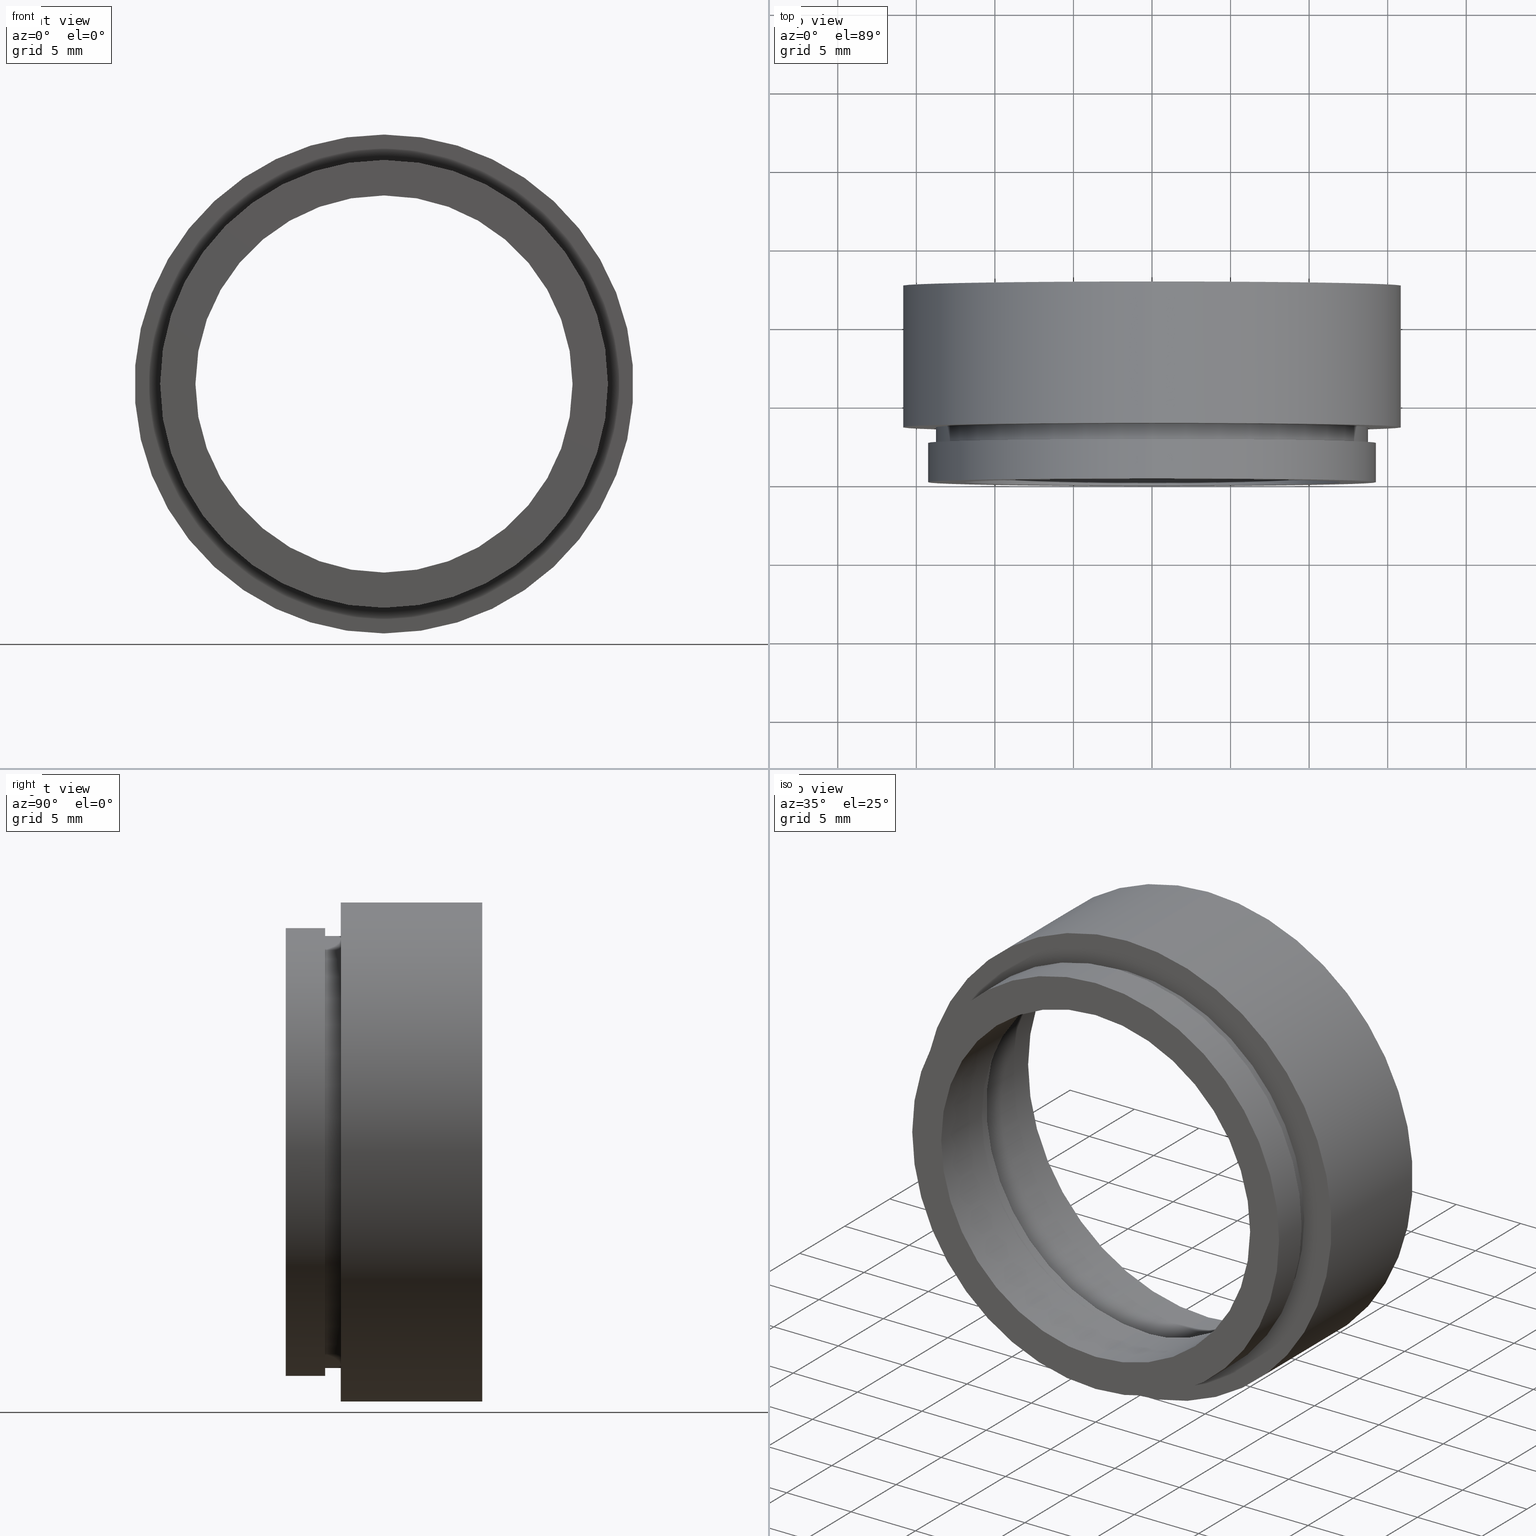
[diagram: canonical four-view strip — front | top / right | iso, engineering-drawing reading convention]
A machine part, canonical four-view strip (front | top / right | iso — engineering-drawing reading convention). The complete STEP part file that produces these views, byte-faithful:
ISO-10303-21;
HEADER;
FILE_DESCRIPTION (( 'STEP AP203' ),
    '1' );
FILE_NAME ('501004.STEP',
    '2019-08-30T10:09:04',
    ( '' ),
    ( '' ),
    'SwSTEP 2.0',
    'SolidWorks 2016',
    '' );
FILE_SCHEMA (( 'CONFIG_CONTROL_DESIGN' ));
ENDSEC;

DATA;
#1 = CALENDAR_DATE ( 2019, 30, 8 ) ;
#2 = PRODUCT_DEFINITION_SHAPE ( 'NONE', 'NONE',  #330 ) ;
#3 = AXIS2_PLACEMENT_3D ( 'NONE', #497, #222, #673 ) ;
#4 = ADVANCED_FACE ( 'NONE', ( #665 ), #285, .T. ) ;
#5 = ORIENTED_EDGE ( 'NONE', *, *, #452, .T. ) ;
#6 = ORIENTED_EDGE ( 'NONE', *, *, #292, .F. ) ;
#7 = PLANE ( 'NONE',  #153 ) ;
#8 = EDGE_CURVE ( 'NONE', #647, #14, #545, .T. ) ;
#9 = DIRECTION ( 'NONE',  ( 0.0000000000000000000, 0.0000000000000000000, -1.000000000000000000 ) ) ;
#10 = DATE_AND_TIME ( #315, #179 ) ;
#11 = CARTESIAN_POINT ( 'NONE',  ( 0.0000000000000000000, 0.0000000000000000000, 0.0000000000000000000 ) ) ;
#12 = FACE_OUTER_BOUND ( 'NONE', #566, .T. ) ;
#13 = EDGE_LOOP ( 'NONE', ( #81, #111, #554, #154 ) ) ;
#14 = VERTEX_POINT ( 'NONE', #305 ) ;
#15 = CARTESIAN_POINT ( 'NONE',  ( 0.0000000000000000000, 0.0000000000000000000, 0.0000000000000000000 ) ) ;
#16 = AXIS2_PLACEMENT_3D ( 'NONE', #453, #688, #119 ) ;
#17 = CARTESIAN_POINT ( 'NONE',  ( 12.69999999999999900, 4.500000000000000000, 0.0000000000000000000 ) ) ;
#18 = APPROVAL_PERSON_ORGANIZATION ( #569, #525, #652 ) ;
#19 = CARTESIAN_POINT ( 'NONE',  ( 0.0000000000000000000, 3.500000000000000000, 0.0000000000000000000 ) ) ;
#20 = CYLINDRICAL_SURFACE ( 'NONE', #541, 14.25000000000000000 ) ;
#21 = AXIS2_PLACEMENT_3D ( 'NONE', #38, #318, #605 ) ;
#22 = PLANE ( 'NONE',  #725 ) ;
#23 = CARTESIAN_POINT ( 'NONE',  ( 1.714505518806294600E-015, 0.0000000000000000000, 14.00000000000000000 ) ) ;
#24 = CC_DESIGN_DATE_AND_TIME_ASSIGNMENT ( #10, #476, ( #703 ) ) ;
#25 = ORIENTED_EDGE ( 'NONE', *, *, #598, .T. ) ;
#26 = CARTESIAN_POINT ( 'NONE',  ( 0.0000000000000000000, 0.0000000000000000000, -12.00000000000000000 ) ) ;
#27 = SECURITY_CLASSIFICATION ( '', '', #427 ) ;
#28 = ADVANCED_FACE ( 'NONE', ( #657, #433 ), #130, .T. ) ;
#29 = VECTOR ( 'NONE', #437, 1000.000000000000000 ) ;
#30 = EDGE_CURVE ( 'NONE', #241, #215, #482, .T. ) ;
#31 = VERTEX_POINT ( 'NONE', #633 ) ;
#32 = ORIENTED_EDGE ( 'NONE', *, *, #232, .F. ) ;
#33 = MECHANICAL_CONTEXT ( 'NONE', #419, 'mechanical' ) ;
#34 = CALENDAR_DATE ( 2019, 30, 8 ) ;
#35 = PERSON_AND_ORGANIZATION_ROLE ( 'design_owner' ) ;
#36 = CARTESIAN_POINT ( 'NONE',  ( 0.0000000000000000000, 0.0000000000000000000, -14.25000000000000000 ) ) ;
#37 = EDGE_LOOP ( 'NONE', ( #122, #455, #495, #583 ) ) ;
#38 = CARTESIAN_POINT ( 'NONE',  ( 0.0000000000000000000, 6.000000000000000000, 0.0000000000000000000 ) ) ;
#39 = AXIS2_PLACEMENT_3D ( 'NONE', #82, #194, #150 ) ;
#40 = CARTESIAN_POINT ( 'NONE',  ( 0.0000000000000000000, 0.0000000000000000000, 0.0000000000000000000 ) ) ;
#41 = EDGE_CURVE ( 'NONE', #693, #441, #333, .T. ) ;
#42 = CIRCLE ( 'NONE', #114, 13.75000000000000000 ) ;
#43 = DIRECTION ( 'NONE',  ( -0.0000000000000000000, -1.000000000000000000, -0.0000000000000000000 ) ) ;
#44 = LINE ( 'NONE', #604, #276 ) ;
#45 = EDGE_LOOP ( 'NONE', ( #603, #386 ) ) ;
#46 = CARTESIAN_POINT ( 'NONE',  ( 0.0000000000000000000, 0.0000000000000000000, -12.69999999999999900 ) ) ;
#47 = PERSON_AND_ORGANIZATION ( #712, #247 ) ;
#48 = CIRCLE ( 'NONE', #513, 14.25000000000000000 ) ;
#49 = DIRECTION ( 'NONE',  ( -0.0000000000000000000, -1.000000000000000000, -0.0000000000000000000 ) ) ;
#50 = AXIS2_PLACEMENT_3D ( 'NONE', #552, #113, #282 ) ;
#51 = CIRCLE ( 'NONE', #674, 14.35000000000000100 ) ;
#52 = CARTESIAN_POINT ( 'NONE',  ( 0.0000000000000000000, 0.0000000000000000000, 0.0000000000000000000 ) ) ;
#53 = FACE_BOUND ( 'NONE', #231, .T. ) ;
#54 = ADVANCED_FACE ( 'NONE', ( #502, #53 ), #22, .T. ) ;
#55 = EDGE_CURVE ( 'NONE', #647, #380, #160, .T. ) ;
#56 = DIRECTION ( 'NONE',  ( 0.0000000000000000000, 0.0000000000000000000, -1.000000000000000000 ) ) ;
#57 = APPROVAL ( #317, 'δָ��' ) ;
#58 = CARTESIAN_POINT ( 'NONE',  ( 1.757368156776452000E-015, 0.0000000000000000000, 14.35000000000000100 ) ) ;
#59 = CIRCLE ( 'NONE', #280, 14.00000000000000000 ) ;
#60 = DIRECTION ( 'NONE',  ( 0.0000000000000000000, 0.0000000000000000000, -1.000000000000000000 ) ) ;
#61 = AXIS2_PLACEMENT_3D ( 'NONE', #611, #49, #278 ) ;
#62 = ORIENTED_EDGE ( 'NONE', *, *, #339, .T. ) ;
#63 = ORIENTED_EDGE ( 'NONE', *, *, #304, .T. ) ;
#64 = DIRECTION ( 'NONE',  ( 0.0000000000000000000, 0.0000000000000000000, -1.000000000000000000 ) ) ;
#65 = VERTEX_POINT ( 'NONE', #302 ) ;
#66 = EDGE_CURVE ( 'NONE', #582, #708, #348, .T. ) ;
#67 = DIRECTION ( 'NONE',  ( 0.0000000000000000000, 0.0000000000000000000, -1.000000000000000000 ) ) ;
#68 = LOCAL_TIME ( 18, 9, 4.000000000000000000, #671 ) ;
#69 = DIRECTION ( 'NONE',  ( 0.0000000000000000000, 0.0000000000000000000, -1.000000000000000000 ) ) ;
#70 = CARTESIAN_POINT ( 'NONE',  ( 1.555301434917138400E-015, 6.000000000000000000, 12.69999999999999900 ) ) ;
#71 = ORIENTED_EDGE ( 'NONE', *, *, #140, .T. ) ;
#72 = DIRECTION ( 'NONE',  ( -0.0000000000000000000, -1.000000000000000000, -0.0000000000000000000 ) ) ;
#73 =( NAMED_UNIT ( * ) PLANE_ANGLE_UNIT ( ) SI_UNIT ( $, .RADIAN. ) );
#74 = DIRECTION ( 'NONE',  ( 0.0000000000000000000, 0.0000000000000000000, -1.000000000000000000 ) ) ;
#75 = CC_DESIGN_DATE_AND_TIME_ASSIGNMENT ( #691, #202, ( #330 ) ) ;
#76 = DIRECTION ( 'NONE',  ( -0.0000000000000000000, -1.000000000000000000, -0.0000000000000000000 ) ) ;
#77 = DIRECTION ( 'NONE',  ( -0.0000000000000000000, -1.000000000000000000, -0.0000000000000000000 ) ) ;
#78 = LINE ( 'NONE', #58, #190 ) ;
#79 = EDGE_CURVE ( 'NONE', #31, #719, #240, .T. ) ;
#80 = CIRCLE ( 'NONE', #164, 13.75000000000000000 ) ;
#81 = ORIENTED_EDGE ( 'NONE', *, *, #41, .F. ) ;
#82 = CARTESIAN_POINT ( 'NONE',  ( 0.0000000000000000000, 0.0000000000000000000, 0.0000000000000000000 ) ) ;
#83 = EDGE_LOOP ( 'NONE', ( #369, #532 ) ) ;
#84 = DATE_TIME_ROLE ( 'classification_date' ) ;
#85 = COORDINATED_UNIVERSAL_TIME_OFFSET ( 8, 0, .AHEAD. ) ;
#86 = APPROVAL_DATE_TIME ( #422, #616 ) ;
#87 = DATE_TIME_ROLE ( 'creation_date' ) ;
#88 = AXIS2_PLACEMENT_3D ( 'NONE', #279, #284, #112 ) ;
#89 = ORIENTED_EDGE ( 'NONE', *, *, #520, .T. ) ;
#90 = APPLICATION_CONTEXT ( 'configuration controlled 3d designs of mechanical parts and assemblies' ) ;
#91 = CARTESIAN_POINT ( 'NONE',  ( 1.745121688784978200E-015, 0.0000000000000000000, 14.25000000000000000 ) ) ;
#92 = APPLICATION_CONTEXT ( 'configuration controlled 3d designs of mechanical parts and assemblies' ) ;
#93 = ADVANCED_FACE ( 'NONE', ( #635 ), #446, .T. ) ;
#94 = EDGE_CURVE ( 'NONE', #176, #584, #463, .T. ) ;
#95 = PRODUCT_RELATED_PRODUCT_CATEGORY ( 'detail', '', ( #372 ) ) ;
#96 = PERSON_AND_ORGANIZATION ( #712, #247 ) ;
#97 = CARTESIAN_POINT ( 'NONE',  ( 0.0000000000000000000, 7.000000000000000000, 0.0000000000000000000 ) ) ;
#98 = VECTOR ( 'NONE', #184, 1000.000000000000000 ) ;
#99 = VERTEX_POINT ( 'NONE', #412 ) ;
#100 = ORIENTED_EDGE ( 'NONE', *, *, #66, .F. ) ;
#101 = AXIS2_PLACEMENT_3D ( 'NONE', #107, #727, #60 ) ;
#102 = EDGE_LOOP ( 'NONE', ( #298, #167, #563, #250 ) ) ;
#103 = CARTESIAN_POINT ( 'NONE',  ( 0.0000000000000000000, 0.0000000000000000000, 0.0000000000000000000 ) ) ;
#104 = DIRECTION ( 'NONE',  ( 0.0000000000000000000, -0.0000000000000000000, 1.000000000000000000 ) ) ;
#105 = EDGE_CURVE ( 'NONE', #216, #441, #152, .T. ) ;
#106 = CALENDAR_DATE ( 2019, 30, 8 ) ;
#107 = CARTESIAN_POINT ( 'NONE',  ( 0.0000000000000000000, 0.0000000000000000000, 0.0000000000000000000 ) ) ;
#108 = CIRCLE ( 'NONE', #399, 13.75000000000000000 ) ;
#109 = EDGE_LOOP ( 'NONE', ( #720, #253, #71, #134 ) ) ;
#110 = AXIS2_PLACEMENT_3D ( 'NONE', #607, #43, #718 ) ;
#111 = ORIENTED_EDGE ( 'NONE', *, *, #168, .F. ) ;
#112 = DIRECTION ( 'NONE',  ( 0.0000000000000000000, 0.0000000000000000000, -1.000000000000000000 ) ) ;
#113 = DIRECTION ( 'NONE',  ( -0.0000000000000000000, -1.000000000000000000, -0.0000000000000000000 ) ) ;
#114 = AXIS2_PLACEMENT_3D ( 'NONE', #619, #275, #670 ) ;
#115 = CYLINDRICAL_SURFACE ( 'NONE', #659, 14.35000000000000100 ) ;
#116 = CARTESIAN_POINT ( 'NONE',  ( 0.0000000000000000000, 3.500000000000000000, 0.0000000000000000000 ) ) ;
#117 = ORIENTED_EDGE ( 'NONE', *, *, #129, .F. ) ;
#118 = EDGE_CURVE ( 'NONE', #176, #593, #614, .T. ) ;
#119 = DIRECTION ( 'NONE',  ( 0.0000000000000000000, 0.0000000000000000000, -1.000000000000000000 ) ) ;
#120 = CARTESIAN_POINT ( 'NONE',  ( 1.555301434917138400E-015, 4.500000000000000000, 12.69999999999999900 ) ) ;
#121 = CARTESIAN_POINT ( 'NONE',  ( 0.0000000000000000000, 4.500000000000000000, 0.0000000000000000000 ) ) ;
#122 = ORIENTED_EDGE ( 'NONE', *, *, #283, .F. ) ;
#123 = CARTESIAN_POINT ( 'NONE',  ( 0.0000000000000000000, 0.0000000000000000000, 0.0000000000000000000 ) ) ;
#124 = AXIS2_PLACEMENT_3D ( 'NONE', #522, #256, #133 ) ;
#125 = DIRECTION ( 'NONE',  ( 0.0000000000000000000, 0.0000000000000000000, 1.000000000000000000 ) ) ;
#126 = DIRECTION ( 'NONE',  ( 0.0000000000000000000, 0.0000000000000000000, -1.000000000000000000 ) ) ;
#127 = CALENDAR_DATE ( 2019, 30, 8 ) ;
#128 = CARTESIAN_POINT ( 'NONE',  ( 0.0000000000000000000, 6.000000000000000000, -14.35000000000000100 ) ) ;
#129 = EDGE_CURVE ( 'NONE', #367, #562, #340, .T. ) ;
#130 = PLANE ( 'NONE',  #191 ) ;
#131 = ORIENTED_EDGE ( 'NONE', *, *, #556, .T. ) ;
#132 = CARTESIAN_POINT ( 'NONE',  ( 0.0000000000000000000, 0.0000000000000000000, -14.35000000000000100 ) ) ;
#133 = DIRECTION ( 'NONE',  ( 0.0000000000000000000, 0.0000000000000000000, -1.000000000000000000 ) ) ;
#134 = ORIENTED_EDGE ( 'NONE', *, *, #180, .F. ) ;
#135 = AXIS2_PLACEMENT_3D ( 'NONE', #15, #404, #456 ) ;
#136 = DIRECTION ( 'NONE',  ( 0.0000000000000000000, 0.0000000000000000000, -1.000000000000000000 ) ) ;
#137 = DATE_AND_TIME ( #281, #68 ) ;
#138 = APPROVAL_STATUS ( 'not_yet_approved' ) ;
#139 = CYLINDRICAL_SURFACE ( 'NONE', #243, 15.87500000000000000 ) ;
#140 = EDGE_CURVE ( 'NONE', #99, #416, #692, .T. ) ;
#141 = ORIENTED_EDGE ( 'NONE', *, *, #158, .F. ) ;
#142 = ORIENTED_EDGE ( 'NONE', *, *, #407, .F. ) ;
#143 = PERSON_AND_ORGANIZATION_ROLE ( 'classification_officer' ) ;
#144 = ADVANCED_FACE ( 'NONE', ( #12 ), #527, .F. ) ;
#145 = AXIS2_PLACEMENT_3D ( 'NONE', #524, #72, #74 ) ;
#146 = APPROVAL_PERSON_ORGANIZATION ( #165, #57, #538 ) ;
#147 = DIRECTION ( 'NONE',  ( -0.0000000000000000000, -1.000000000000000000, -0.0000000000000000000 ) ) ;
#148 = PERSON_AND_ORGANIZATION ( #712, #247 ) ;
#149 = CIRCLE ( 'NONE', #135, 14.25000000000000000 ) ;
#150 = DIRECTION ( 'NONE',  ( 1.000000000000000000, 0.0000000000000000000, 0.0000000000000000000 ) ) ;
#151 = CARTESIAN_POINT ( 'NONE',  ( 1.469576158976823900E-015, 0.0000000000000000000, 12.00000000000000000 ) ) ;
#152 = CIRCLE ( 'NONE', #177, 12.69999999999999900 ) ;
#153 = AXIS2_PLACEMENT_3D ( 'NONE', #344, #695, #346 ) ;
#154 = ORIENTED_EDGE ( 'NONE', *, *, #105, .T. ) ;
#155 = ADVANCED_FACE ( 'NONE', ( #394, #590 ), #713, .T. ) ;
#156 = EDGE_LOOP ( 'NONE', ( #100, #358 ) ) ;
#157 = CARTESIAN_POINT ( 'NONE',  ( 0.0000000000000000000, 4.500000000000000000, -12.00000000000000000 ) ) ;
#158 = EDGE_CURVE ( 'NONE', #416, #99, #700, .T. ) ;
#159 = APPROVAL_PERSON_ORGANIZATION ( #606, #255, #589 ) ;
#160 = LINE ( 'NONE', #516, #726 ) ;
#161 = DIRECTION ( 'NONE',  ( -0.0000000000000000000, -1.000000000000000000, -0.0000000000000000000 ) ) ;
#162 = ORIENTED_EDGE ( 'NONE', *, *, #304, .F. ) ;
#163 = ORIENTED_EDGE ( 'NONE', *, *, #105, .F. ) ;
#164 = AXIS2_PLACEMENT_3D ( 'NONE', #484, #724, #658 ) ;
#165 = PERSON_AND_ORGANIZATION ( #712, #247 ) ;
#166 = ADVANCED_FACE ( 'NONE', ( #544 ), #238, .F. ) ;
#167 = ORIENTED_EDGE ( 'NONE', *, *, #556, .F. ) ;
#168 = EDGE_CURVE ( 'NONE', #648, #693, #291, .T. ) ;
#169 = ADVANCED_FACE ( 'NONE', ( #675 ), #377, .F. ) ;
#170 = CC_DESIGN_APPROVAL ( #57, ( #703 ) ) ;
#171 = DATE_AND_TIME ( #1, #443 ) ;
#172 = DIRECTION ( 'NONE',  ( -0.0000000000000000000, -1.000000000000000000, -0.0000000000000000000 ) ) ;
#173 = PRODUCT_RELATED_PRODUCT_CATEGORY ( 'detail', '', ( #314 ) ) ;
#174 = FACE_OUTER_BOUND ( 'NONE', #319, .T. ) ;
#175 = CARTESIAN_POINT ( 'NONE',  ( 0.0000000000000000000, 3.500000000000000000, -15.87500000000000000 ) ) ;
#176 = VERTEX_POINT ( 'NONE', #157 ) ;
#177 = AXIS2_PLACEMENT_3D ( 'NONE', #410, #602, #373 ) ;
#178 = CARTESIAN_POINT ( 'NONE',  ( 0.0000000000000000000, 2.500000000000000000, -13.75000000000000000 ) ) ;
#179 = LOCAL_TIME ( 18, 9, 4.000000000000000000, #477 ) ;
#180 = EDGE_CURVE ( 'NONE', #719, #416, #664, .T. ) ;
#181 = DIRECTION ( 'NONE',  ( -0.0000000000000000000, -1.000000000000000000, -0.0000000000000000000 ) ) ;
#182 = DIRECTION ( 'NONE',  ( -0.0000000000000000000, -1.000000000000000000, -0.0000000000000000000 ) ) ;
#183 = LINE ( 'NONE', #46, #661 ) ;
#184 = DIRECTION ( 'NONE',  ( -0.0000000000000000000, -1.000000000000000000, -0.0000000000000000000 ) ) ;
#185 = ORIENTED_EDGE ( 'NONE', *, *, #8, .F. ) ;
#186 = CARTESIAN_POINT ( 'NONE',  ( 1.469576158976823900E-015, 4.500000000000000000, 12.00000000000000000 ) ) ;
#187 = AXIS2_PLACEMENT_3D ( 'NONE', #646, #182, #576 ) ;
#188 = DIRECTION ( 'NONE',  ( 0.0000000000000000000, 0.0000000000000000000, -1.000000000000000000 ) ) ;
#189 = CARTESIAN_POINT ( 'NONE',  ( 0.0000000000000000000, 12.50000000000000000, -14.00000000000000000 ) ) ;
#190 = VECTOR ( 'NONE', #172, 1000.000000000000000 ) ;
#191 = AXIS2_PLACEMENT_3D ( 'NONE', #644, #529, #581 ) ;
#192 = CARTESIAN_POINT ( 'NONE',  ( 1.555301434917138400E-015, 0.0000000000000000000, 12.69999999999999900 ) ) ;
#193 = CIRCLE ( 'NONE', #88, 12.69999999999999900 ) ;
#194 = DIRECTION ( 'NONE',  ( 0.0000000000000000000, 0.0000000000000000000, 1.000000000000000000 ) ) ;
#195 = CYLINDRICAL_SURFACE ( 'NONE', #326, 14.00000000000000000 ) ;
#196 = PERSON_AND_ORGANIZATION_ROLE ( 'creator' ) ;
#197 = ADVANCED_FACE ( 'NONE', ( #249 ), #267, .F. ) ;
#198 = ORIENTED_EDGE ( 'NONE', *, *, #368, .T. ) ;
#199 = CC_DESIGN_PERSON_AND_ORGANIZATION_ASSIGNMENT ( #420, #312, ( #559 ) ) ;
#200 = APPROVAL_ROLE ( '' ) ;
#201 = COORDINATED_UNIVERSAL_TIME_OFFSET ( 8, 0, .AHEAD. ) ;
#202 = DATE_TIME_ROLE ( 'creation_date' ) ;
#203 = SHAPE_DEFINITION_REPRESENTATION ( #411, #486 ) ;
#204 = FACE_OUTER_BOUND ( 'NONE', #694, .T. ) ;
#205 = APPROVAL ( #138, 'δָ��' ) ;
#206 = ADVANCED_FACE ( 'NONE', ( #230 ), #195, .F. ) ;
#207 = VERTEX_POINT ( 'NONE', #432 ) ;
#208 = CARTESIAN_POINT ( 'NONE',  ( 0.0000000000000000000, 0.0000000000000000000, 0.0000000000000000000 ) ) ;
#209 = ORIENTED_EDGE ( 'NONE', *, *, #79, .T. ) ;
#210 = EDGE_CURVE ( 'NONE', #14, #647, #80, .T. ) ;
#211 = VECTOR ( 'NONE', #335, 1000.000000000000000 ) ;
#212 = CARTESIAN_POINT ( 'NONE',  ( 0.0000000000000000000, 7.000000000000000000, 0.0000000000000000000 ) ) ;
#213 = CC_DESIGN_PERSON_AND_ORGANIZATION_ASSIGNMENT ( #297, #35, ( #372 ) ) ;
#214 = ORIENTED_EDGE ( 'NONE', *, *, #392, .T. ) ;
#215 = VERTEX_POINT ( 'NONE', #36 ) ;
#216 = VERTEX_POINT ( 'NONE', #669 ) ;
#217 = DIRECTION ( 'NONE',  ( 0.0000000000000000000, 0.0000000000000000000, -1.000000000000000000 ) ) ;
#218 = CARTESIAN_POINT ( 'NONE',  ( 0.0000000000000000000, 2.500000000000000000, 0.0000000000000000000 ) ) ;
#219 = AXIS2_PLACEMENT_3D ( 'NONE', #97, #434, #217 ) ;
#220 = DATE_AND_TIME ( #127, #640 ) ;
#221 = CIRCLE ( 'NONE', #579, 15.87500000000000000 ) ;
#222 = DIRECTION ( 'NONE',  ( -0.0000000000000000000, -1.000000000000000000, -0.0000000000000000000 ) ) ;
#223 = AXIS2_PLACEMENT_3D ( 'NONE', #696, #76, #356 ) ;
#224 = VECTOR ( 'NONE', #254, 1000.000000000000000 ) ;
#225 = VERTEX_POINT ( 'NONE', #428 ) ;
#226 = DIRECTION ( 'NONE',  ( 0.0000000000000000000, 0.0000000000000000000, -1.000000000000000000 ) ) ;
#227 = AXIS2_PLACEMENT_3D ( 'NONE', #244, #526, #470 ) ;
#228 = COORDINATED_UNIVERSAL_TIME_OFFSET ( 8, 0, .AHEAD. ) ;
#229 = DIRECTION ( 'NONE',  ( -0.0000000000000000000, -1.000000000000000000, -0.0000000000000000000 ) ) ;
#230 = FACE_OUTER_BOUND ( 'NONE', #102, .T. ) ;
#231 = EDGE_LOOP ( 'NONE', ( #141, #277 ) ) ;
#232 = EDGE_CURVE ( 'NONE', #617, #215, #44, .T. ) ;
#233 = ORIENTED_EDGE ( 'NONE', *, *, #246, .T. ) ;
#234 = DESIGN_CONTEXT ( 'detailed design', #472, 'design' ) ;
#235 = PERSON_AND_ORGANIZATION ( #712, #247 ) ;
#236 = DIRECTION ( 'NONE',  ( -0.0000000000000000000, -1.000000000000000000, -0.0000000000000000000 ) ) ;
#237 = CIRCLE ( 'NONE', #360, 14.35000000000000100 ) ;
#238 = CYLINDRICAL_SURFACE ( 'NONE', #594, 14.00000000000000000 ) ;
#239 = CARTESIAN_POINT ( 'NONE',  ( 15.87500000000000000, 12.50000000000000000, 0.0000000000000000000 ) ) ;
#240 = CIRCLE ( 'NONE', #543, 14.00000000000000000 ) ;
#241 = VERTEX_POINT ( 'NONE', #91 ) ;
#242 = DIRECTION ( 'NONE',  ( 0.0000000000000000000, 0.0000000000000000000, -1.000000000000000000 ) ) ;
#243 = AXIS2_PLACEMENT_3D ( 'NONE', #393, #567, #69 ) ;
#244 = CARTESIAN_POINT ( 'NONE',  ( 0.0000000000000000000, 0.0000000000000000000, 0.0000000000000000000 ) ) ;
#245 = DIRECTION ( 'NONE',  ( 1.000000000000000000, 0.0000000000000000000, 0.0000000000000000000 ) ) ;
#246 = EDGE_CURVE ( 'NONE', #380, #494, #108, .T. ) ;
#247 = ORGANIZATION ( 'δָ��', 'δָ��', '' ) ;
#248 = DIRECTION ( 'NONE',  ( -0.0000000000000000000, -1.000000000000000000, -0.0000000000000000000 ) ) ;
#249 = FACE_OUTER_BOUND ( 'NONE', #539, .T. ) ;
#250 = ORIENTED_EDGE ( 'NONE', *, *, #158, .T. ) ;
#251 = PLANE ( 'NONE',  #449 ) ;
#252 = EDGE_LOOP ( 'NONE', ( #667, #6 ) ) ;
#253 = ORIENTED_EDGE ( 'NONE', *, *, #620, .T. ) ;
#254 = DIRECTION ( 'NONE',  ( -0.0000000000000000000, -1.000000000000000000, -0.0000000000000000000 ) ) ;
#255 = APPROVAL ( #370, 'δָ��' ) ;
#256 = DIRECTION ( 'NONE',  ( -0.0000000000000000000, -1.000000000000000000, -0.0000000000000000000 ) ) ;
#257 = PERSON_AND_ORGANIZATION_ROLE ( 'creator' ) ;
#258 = PERSON_AND_ORGANIZATION ( #712, #247 ) ;
#259 = APPLICATION_PROTOCOL_DEFINITION ( 'international standard', 'config_control_design', 1994, #92 ) ;
#260 = ORIENTED_EDGE ( 'NONE', *, *, #321, .T. ) ;
#261 = AXIS2_PLACEMENT_3D ( 'NONE', #212, #147, #666 ) ;
#262 = APPLICATION_PROTOCOL_DEFINITION ( 'international standard', 'config_control_design', 1994, #90 ) ;
#263 = DIRECTION ( 'NONE',  ( 0.0000000000000000000, 0.0000000000000000000, -1.000000000000000000 ) ) ;
#264 = APPROVAL_STATUS ( 'not_yet_approved' ) ;
#265 = CYLINDRICAL_SURFACE ( 'NONE', #388, 13.75000000000000000 ) ;
#266 = CC_DESIGN_APPROVAL ( #205, ( #710 ) ) ;
#267 = CYLINDRICAL_SURFACE ( 'NONE', #684, 12.00000000000000000 ) ;
#268 = EDGE_LOOP ( 'NONE', ( #142, #702 ) ) ;
#269 = CARTESIAN_POINT ( 'NONE',  ( 0.0000000000000000000, 0.0000000000000000000, -14.00000000000000000 ) ) ;
#270 = EDGE_LOOP ( 'NONE', ( #709, #424, #519, #378 ) ) ;
#271 = EDGE_CURVE ( 'NONE', #584, #207, #327, .T. ) ;
#272 = ADVANCED_FACE ( 'NONE', ( #682, #626 ), #681, .T. ) ;
#273 = PERSON_AND_ORGANIZATION ( #712, #247 ) ;
#274 = CIRCLE ( 'NONE', #124, 12.69999999999999900 ) ;
#275 = DIRECTION ( 'NONE',  ( -0.0000000000000000000, -1.000000000000000000, -0.0000000000000000000 ) ) ;
#276 = VECTOR ( 'NONE', #721, 1000.000000000000000 ) ;
#277 = ORIENTED_EDGE ( 'NONE', *, *, #140, .F. ) ;
#278 = DIRECTION ( 'NONE',  ( 0.0000000000000000000, 0.0000000000000000000, -1.000000000000000000 ) ) ;
#279 = CARTESIAN_POINT ( 'NONE',  ( 0.0000000000000000000, 6.000000000000000000, 0.0000000000000000000 ) ) ;
#280 = AXIS2_PLACEMENT_3D ( 'NONE', #415, #468, #136 ) ;
#281 = CALENDAR_DATE ( 2019, 30, 8 ) ;
#282 = DIRECTION ( 'NONE',  ( 0.0000000000000000000, 0.0000000000000000000, -1.000000000000000000 ) ) ;
#283 = EDGE_CURVE ( 'NONE', #610, #241, #402, .T. ) ;
#284 = DIRECTION ( 'NONE',  ( -0.0000000000000000000, -1.000000000000000000, -0.0000000000000000000 ) ) ;
#285 = CYLINDRICAL_SURFACE ( 'NONE', #663, 15.87500000000000000 ) ;
#286 = ORIENTED_EDGE ( 'NONE', *, *, #568, .T. ) ;
#287 = EDGE_LOOP ( 'NONE', ( #530, #342, #286, #686 ) ) ;
#288 = DIRECTION ( 'NONE',  ( 0.0000000000000000000, 0.0000000000000000000, -1.000000000000000000 ) ) ;
#289 = AXIS2_PLACEMENT_3D ( 'NONE', #40, #490, #263 ) ;
#290 = CIRCLE ( 'NONE', #16, 14.35000000000000100 ) ;
#291 = CIRCLE ( 'NONE', #21, 12.69999999999999900 ) ;
#292 = EDGE_CURVE ( 'NONE', #207, #593, #699, .T. ) ;
#293 = ORIENTED_EDGE ( 'NONE', *, *, #435, .T. ) ;
#294 = ORIENTED_EDGE ( 'NONE', *, *, #118, .F. ) ;
#295 = DIRECTION ( 'NONE',  ( -0.0000000000000000000, -1.000000000000000000, -0.0000000000000000000 ) ) ;
#296 = CARTESIAN_POINT ( 'NONE',  ( 1.944126793646423200E-015, 0.0000000000000000000, 15.87500000000000000 ) ) ;
#297 = PERSON_AND_ORGANIZATION ( #712, #247 ) ;
#298 = ORIENTED_EDGE ( 'NONE', *, *, #620, .F. ) ;
#299 = ORIENTED_EDGE ( 'NONE', *, *, #506, .T. ) ;
#300 = CC_DESIGN_PERSON_AND_ORGANIZATION_ASSIGNMENT ( #235, #196, ( #710 ) ) ;
#301 = DIRECTION ( 'NONE',  ( 0.0000000000000000000, 0.0000000000000000000, -1.000000000000000000 ) ) ;
#302 = CARTESIAN_POINT ( 'NONE',  ( 1.757368156776452000E-015, 6.000000000000000000, 14.35000000000000100 ) ) ;
#303 =( NAMED_UNIT ( * ) SI_UNIT ( $, .STERADIAN. ) SOLID_ANGLE_UNIT ( ) );
#304 = EDGE_CURVE ( 'NONE', #562, #65, #237, .T. ) ;
#305 = CARTESIAN_POINT ( 'NONE',  ( 0.0000000000000000000, 3.500000000000000000, -13.75000000000000000 ) ) ;
#306 = DATE_AND_TIME ( #383, #595 ) ;
#307 = VECTOR ( 'NONE', #343, 1000.000000000000000 ) ;
#308 = VECTOR ( 'NONE', #181, 1000.000000000000000 ) ;
#309 = APPROVAL_STATUS ( 'not_yet_approved' ) ;
#310 = EDGE_LOOP ( 'NONE', ( #163, #405 ) ) ;
#311 = EDGE_LOOP ( 'NONE', ( #483, #511, #601, #63 ) ) ;
#312 = PERSON_AND_ORGANIZATION_ROLE ( 'creator' ) ;
#313 = PERSON_AND_ORGANIZATION_ROLE ( 'design_owner' ) ;
#314 = PRODUCT ( '501004', '501004', '', ( #33 ) ) ;
#315 = CALENDAR_DATE ( 2019, 30, 8 ) ;
#316 = FACE_OUTER_BOUND ( 'NONE', #156, .T. ) ;
#317 = APPROVAL_STATUS ( 'not_yet_approved' ) ;
#318 = DIRECTION ( 'NONE',  ( -0.0000000000000000000, -1.000000000000000000, -0.0000000000000000000 ) ) ;
#319 = EDGE_LOOP ( 'NONE', ( #350, #618, #5, #687 ) ) ;
#320 = CARTESIAN_POINT ( 'NONE',  ( 14.35000000000000100, 6.000000000000000000, 0.0000000000000000000 ) ) ;
#321 = EDGE_CURVE ( 'NONE', #494, #380, #42, .T. ) ;
#322 = DIRECTION ( 'NONE',  ( 0.0000000000000000000, 0.0000000000000000000, -1.000000000000000000 ) ) ;
#323 = COORDINATED_UNIVERSAL_TIME_OFFSET ( 8, 0, .AHEAD. ) ;
#324 = CIRCLE ( 'NONE', #429, 12.00000000000000000 ) ;
#325 = CARTESIAN_POINT ( 'NONE',  ( 0.0000000000000000000, 0.0000000000000000000, 0.0000000000000000000 ) ) ;
#326 = AXIS2_PLACEMENT_3D ( 'NONE', #103, #540, #549 ) ;
#327 = LINE ( 'NONE', #151, #29 ) ;
#328 = ORIENTED_EDGE ( 'NONE', *, *, #481, .F. ) ;
#329 = EDGE_LOOP ( 'NONE', ( #131, #209 ) ) ;
#330 = PRODUCT_DEFINITION ( 'δ֪', '', #710, #234 ) ;
#331 = DIRECTION ( 'NONE',  ( 0.0000000000000000000, 0.0000000000000000000, -1.000000000000000000 ) ) ;
#332 = DATE_AND_TIME ( #478, #499 ) ;
#333 = LINE ( 'NONE', #192, #224 ) ;
#334 = DIRECTION ( 'NONE',  ( 0.0000000000000000000, 0.0000000000000000000, -1.000000000000000000 ) ) ;
#335 = DIRECTION ( 'NONE',  ( -0.0000000000000000000, -1.000000000000000000, -0.0000000000000000000 ) ) ;
#336 = CC_DESIGN_PERSON_AND_ORGANIZATION_ASSIGNMENT ( #47, #143, ( #27 ) ) ;
#337 = CIRCLE ( 'NONE', #61, 14.35000000000000100 ) ;
#338 = CIRCLE ( 'NONE', #553, 12.00000000000000000 ) ;
#339 = EDGE_CURVE ( 'NONE', #693, #648, #193, .T. ) ;
#340 = LINE ( 'NONE', #132, #98 ) ;
#341 = DIRECTION ( 'NONE',  ( -0.0000000000000000000, -1.000000000000000000, -0.0000000000000000000 ) ) ;
#342 = ORIENTED_EDGE ( 'NONE', *, *, #8, .T. ) ;
#343 = DIRECTION ( 'NONE',  ( -0.0000000000000000000, -1.000000000000000000, -0.0000000000000000000 ) ) ;
#344 = CARTESIAN_POINT ( 'NONE',  ( 12.00000000000000000, 0.0000000000000000000, 0.0000000000000000000 ) ) ;
#345 = APPROVAL_DATE_TIME ( #137, #255 ) ;
#346 = DIRECTION ( 'NONE',  ( 0.0000000000000000000, 0.0000000000000000000, -1.000000000000000000 ) ) ;
#347 = DIRECTION ( 'NONE',  ( -0.0000000000000000000, -1.000000000000000000, -0.0000000000000000000 ) ) ;
#348 = CIRCLE ( 'NONE', #145, 15.87500000000000000 ) ;
#349 =( GEOMETRIC_REPRESENTATION_CONTEXT ( 3 ) GLOBAL_UNCERTAINTY_ASSIGNED_CONTEXT ( ( #643 ) ) GLOBAL_UNIT_ASSIGNED_CONTEXT ( ( #409, #73, #303 ) ) REPRESENTATION_CONTEXT ( 'NONE', 'WORKASPACE' ) );
#350 = ORIENTED_EDGE ( 'NONE', *, *, #585, .F. ) ;
#351 = CARTESIAN_POINT ( 'NONE',  ( 0.0000000000000000000, 2.499999999999999600, -14.25000000000000000 ) ) ;
#352 = DIRECTION ( 'NONE',  ( -0.0000000000000000000, -1.000000000000000000, -0.0000000000000000000 ) ) ;
#353 = CARTESIAN_POINT ( 'NONE',  ( 0.0000000000000000000, 0.0000000000000000000, 0.0000000000000000000 ) ) ;
#354 = DIRECTION ( 'NONE',  ( 0.0000000000000000000, -0.0000000000000000000, 1.000000000000000000 ) ) ;
#355 = VECTOR ( 'NONE', #248, 1000.000000000000000 ) ;
#356 = DIRECTION ( 'NONE',  ( 0.0000000000000000000, 0.0000000000000000000, -1.000000000000000000 ) ) ;
#357 = CARTESIAN_POINT ( 'NONE',  ( 0.0000000000000000000, 0.0000000000000000000, 0.0000000000000000000 ) ) ;
#358 = ORIENTED_EDGE ( 'NONE', *, *, #608, .F. ) ;
#359 = ORIENTED_EDGE ( 'NONE', *, *, #339, .F. ) ;
#360 = AXIS2_PLACEMENT_3D ( 'NONE', #445, #161, #334 ) ;
#361 = EDGE_LOOP ( 'NONE', ( #260, #233 ) ) ;
#362 = AXIS2_PLACEMENT_3D ( 'NONE', #389, #496, #56 ) ;
#363 = APPROVAL_DATE_TIME ( #332, #205 ) ;
#364 = APPLICATION_PROTOCOL_DEFINITION ( 'international standard', 'config_control_design', 1994, #472 ) ;
#365 = APPROVAL_PERSON_ORGANIZATION ( #514, #205, #200 ) ;
#366 = PERSON_AND_ORGANIZATION_ROLE ( 'creator' ) ;
#367 = VERTEX_POINT ( 'NONE', #677 ) ;
#368 = EDGE_CURVE ( 'NONE', #593, #207, #338, .T. ) ;
#369 = ORIENTED_EDGE ( 'NONE', *, *, #492, .T. ) ;
#370 = APPROVAL_STATUS ( 'not_yet_approved' ) ;
#371 = DIRECTION ( 'NONE',  ( 0.0000000000000000000, 0.0000000000000000000, -1.000000000000000000 ) ) ;
#372 = PRODUCT ( '501004', '501004', '', ( #535 ) ) ;
#373 = DIRECTION ( 'NONE',  ( 0.0000000000000000000, 0.0000000000000000000, -1.000000000000000000 ) ) ;
#374 = ADVANCED_FACE ( 'NONE', ( #423 ), #265, .T. ) ;
#375 = CALENDAR_DATE ( 2019, 30, 8 ) ;
#376 = CC_DESIGN_DATE_AND_TIME_ASSIGNMENT ( #690, #84, ( #27 ) ) ;
#377 = CYLINDRICAL_SURFACE ( 'NONE', #289, 12.00000000000000000 ) ;
#378 = ORIENTED_EDGE ( 'NONE', *, *, #452, .F. ) ;
#379 = EDGE_LOOP ( 'NONE', ( #299, #440 ) ) ;
#380 = VERTEX_POINT ( 'NONE', #615 ) ;
#381 = EDGE_CURVE ( 'NONE', #436, #473, #625, .T. ) ;
#382 = DIRECTION ( 'NONE',  ( -0.0000000000000000000, -1.000000000000000000, -0.0000000000000000000 ) ) ;
#383 = CALENDAR_DATE ( 2019, 30, 8 ) ;
#384 = FACE_OUTER_BOUND ( 'NONE', #379, .T. ) ;
#385 = DIRECTION ( 'NONE',  ( -0.0000000000000000000, -1.000000000000000000, -0.0000000000000000000 ) ) ;
#386 = ORIENTED_EDGE ( 'NONE', *, *, #444, .T. ) ;
#387 = CARTESIAN_POINT ( 'NONE',  ( 0.0000000000000000000, 0.0000000000000000000, 0.0000000000000000000 ) ) ;
#388 = AXIS2_PLACEMENT_3D ( 'NONE', #52, #385, #439 ) ;
#389 = CARTESIAN_POINT ( 'NONE',  ( 0.0000000000000000000, 3.500000000000000000, 0.0000000000000000000 ) ) ;
#390 = FACE_OUTER_BOUND ( 'NONE', #310, .T. ) ;
#391 = CIRCLE ( 'NONE', #3, 14.25000000000000000 ) ;
#392 = EDGE_CURVE ( 'NONE', #65, #562, #337, .T. ) ;
#393 = CARTESIAN_POINT ( 'NONE',  ( 0.0000000000000000000, 0.0000000000000000000, 0.0000000000000000000 ) ) ;
#394 = FACE_BOUND ( 'NONE', #414, .T. ) ;
#395 = ORIENTED_EDGE ( 'NONE', *, *, #381, .T. ) ;
#396 = EDGE_LOOP ( 'NONE', ( #509, #474, #636, #198 ) ) ;
#397 = ORIENTED_EDGE ( 'NONE', *, *, #568, .F. ) ;
#398 = PLANE ( 'NONE',  #442 ) ;
#399 = AXIS2_PLACEMENT_3D ( 'NONE', #218, #504, #331 ) ;
#400 = DIRECTION ( 'NONE',  ( -0.0000000000000000000, -1.000000000000000000, -0.0000000000000000000 ) ) ;
#401 = LINE ( 'NONE', #23, #355 ) ;
#402 = LINE ( 'NONE', #501, #211 ) ;
#403 = CC_DESIGN_APPROVAL ( #616, ( #330 ) ) ;
#404 = DIRECTION ( 'NONE',  ( -0.0000000000000000000, -1.000000000000000000, -0.0000000000000000000 ) ) ;
#405 = ORIENTED_EDGE ( 'NONE', *, *, #598, .F. ) ;
#406 = ORIENTED_EDGE ( 'NONE', *, *, #271, .T. ) ;
#407 = EDGE_CURVE ( 'NONE', #617, #610, #391, .T. ) ;
#408 = DIRECTION ( 'NONE',  ( 0.0000000000000000000, 0.0000000000000000000, -1.000000000000000000 ) ) ;
#409 =( LENGTH_UNIT ( ) NAMED_UNIT ( * ) SI_UNIT ( .MILLI., .METRE. ) );
#410 = CARTESIAN_POINT ( 'NONE',  ( 0.0000000000000000000, 4.500000000000000000, 0.0000000000000000000 ) ) ;
#411 = PRODUCT_DEFINITION_SHAPE ( 'NONE', 'NONE',  #413 ) ;
#412 = CARTESIAN_POINT ( 'NONE',  ( 1.714505518806294600E-015, 7.000000000000000000, 14.00000000000000000 ) ) ;
#413 = PRODUCT_DEFINITION ( 'δ֪', '', #559, #651 ) ;
#414 = EDGE_LOOP ( 'NONE', ( #591, #62 ) ) ;
#415 = CARTESIAN_POINT ( 'NONE',  ( 0.0000000000000000000, 12.50000000000000000, 0.0000000000000000000 ) ) ;
#416 = VERTEX_POINT ( 'NONE', #557 ) ;
#417 = CARTESIAN_POINT ( 'NONE',  ( 1.745121688784978200E-015, 2.499999999999999600, 14.25000000000000000 ) ) ;
#418 = EDGE_CURVE ( 'NONE', #648, #216, #183, .T. ) ;
#419 = APPLICATION_CONTEXT ( 'configuration controlled 3d designs of mechanical parts and assemblies' ) ;
#420 = PERSON_AND_ORGANIZATION ( #712, #247 ) ;
#421 = ADVANCED_FACE ( 'NONE', ( #204 ), #588, .F. ) ;
#422 = DATE_AND_TIME ( #375, #523 ) ;
#423 = FACE_OUTER_BOUND ( 'NONE', #287, .T. ) ;
#424 = ORIENTED_EDGE ( 'NONE', *, *, #585, .T. ) ;
#425 = PERSON_AND_ORGANIZATION_ROLE ( 'design_supplier' ) ;
#426 = ADVANCED_FACE ( 'NONE', ( #451 ), #115, .F. ) ;
#427 = SECURITY_CLASSIFICATION_LEVEL ( 'unclassified' ) ;
#428 = CARTESIAN_POINT ( 'NONE',  ( 1.757368156776452000E-015, 7.000000000000000000, 14.35000000000000100 ) ) ;
#429 = AXIS2_PLACEMENT_3D ( 'NONE', #121, #448, #64 ) ;
#430 = CALENDAR_DATE ( 2019, 30, 8 ) ;
#431 = FACE_OUTER_BOUND ( 'NONE', #645, .T. ) ;
#432 = CARTESIAN_POINT ( 'NONE',  ( 1.469576158976823900E-015, 0.0000000000000000000, 12.00000000000000000 ) ) ;
#433 = FACE_BOUND ( 'NONE', #491, .T. ) ;
#434 = DIRECTION ( 'NONE',  ( -0.0000000000000000000, -1.000000000000000000, -0.0000000000000000000 ) ) ;
#435 = EDGE_CURVE ( 'NONE', #225, #65, #78, .T. ) ;
#436 = VERTEX_POINT ( 'NONE', #175 ) ;
#437 = DIRECTION ( 'NONE',  ( -0.0000000000000000000, -1.000000000000000000, -0.0000000000000000000 ) ) ;
#438 = LINE ( 'NONE', #627, #307 ) ;
#439 = DIRECTION ( 'NONE',  ( 0.0000000000000000000, 0.0000000000000000000, -1.000000000000000000 ) ) ;
#440 = ORIENTED_EDGE ( 'NONE', *, *, #30, .T. ) ;
#441 = VERTEX_POINT ( 'NONE', #120 ) ;
#442 = AXIS2_PLACEMENT_3D ( 'NONE', #239, #624, #454 ) ;
#443 = LOCAL_TIME ( 18, 9, 4.000000000000000000, #489 ) ;
#444 = EDGE_CURVE ( 'NONE', #584, #176, #324, .T. ) ;
#445 = CARTESIAN_POINT ( 'NONE',  ( 0.0000000000000000000, 6.000000000000000000, 0.0000000000000000000 ) ) ;
#446 = CYLINDRICAL_SURFACE ( 'NONE', #678, 14.25000000000000000 ) ;
#447 = ORIENTED_EDGE ( 'NONE', *, *, #283, .T. ) ;
#448 = DIRECTION ( 'NONE',  ( -0.0000000000000000000, -1.000000000000000000, -0.0000000000000000000 ) ) ;
#449 = AXIS2_PLACEMENT_3D ( 'NONE', #17, #531, #354 ) ;
#450 = PERSON_AND_ORGANIZATION ( #712, #247 ) ;
#451 = FACE_OUTER_BOUND ( 'NONE', #311, .T. ) ;
#452 = EDGE_CURVE ( 'NONE', #582, #436, #438, .T. ) ;
#453 = CARTESIAN_POINT ( 'NONE',  ( 0.0000000000000000000, 7.000000000000000000, 0.0000000000000000000 ) ) ;
#454 = DIRECTION ( 'NONE',  ( 0.0000000000000000000, -0.0000000000000000000, 1.000000000000000000 ) ) ;
#455 = ORIENTED_EDGE ( 'NONE', *, *, #689, .T. ) ;
#456 = DIRECTION ( 'NONE',  ( 0.0000000000000000000, 0.0000000000000000000, -1.000000000000000000 ) ) ;
#457 = DIRECTION ( 'NONE',  ( 0.0000000000000000000, -1.000000000000000000, -0.0000000000000000000 ) ) ;
#458 = PERSON_AND_ORGANIZATION ( #712, #247 ) ;
#459 = CARTESIAN_POINT ( 'NONE',  ( 1.683889348827610700E-015, 3.500000000000000000, 13.75000000000000000 ) ) ;
#460 = DIRECTION ( 'NONE',  ( -0.0000000000000000000, -1.000000000000000000, -0.0000000000000000000 ) ) ;
#461 = AXIS2_PLACEMENT_3D ( 'NONE', #357, #125, #245 ) ;
#462 = CARTESIAN_POINT ( 'NONE',  ( 0.0000000000000000000, 2.499999999999999600, 0.0000000000000000000 ) ) ;
#463 = CIRCLE ( 'NONE', #223, 12.00000000000000000 ) ;
#464 = ORIENTED_EDGE ( 'NONE', *, *, #418, .F. ) ;
#465 = ORIENTED_EDGE ( 'NONE', *, *, #506, .F. ) ;
#466 = DIRECTION ( 'NONE',  ( -0.0000000000000000000, -1.000000000000000000, -0.0000000000000000000 ) ) ;
#467 = DIRECTION ( 'NONE',  ( 0.0000000000000000000, 0.0000000000000000000, -1.000000000000000000 ) ) ;
#468 = DIRECTION ( 'NONE',  ( -0.0000000000000000000, -1.000000000000000000, -0.0000000000000000000 ) ) ;
#469 = LOCAL_TIME ( 18, 9, 4.000000000000000000, #201 ) ;
#470 = DIRECTION ( 'NONE',  ( 0.0000000000000000000, 0.0000000000000000000, -1.000000000000000000 ) ) ;
#471 = CC_DESIGN_PERSON_AND_ORGANIZATION_ASSIGNMENT ( #148, #313, ( #314 ) ) ;
#472 = APPLICATION_CONTEXT ( 'configuration controlled 3d designs of mechanical parts and assemblies' ) ;
#473 = VERTEX_POINT ( 'NONE', #574 ) ;
#474 = ORIENTED_EDGE ( 'NONE', *, *, #94, .F. ) ;
#475 = AXIS2_PLACEMENT_3D ( 'NONE', #572, #236, #512 ) ;
#476 = DATE_TIME_ROLE ( 'classification_date' ) ;
#477 = COORDINATED_UNIVERSAL_TIME_OFFSET ( 8, 0, .AHEAD. ) ;
#478 = CALENDAR_DATE ( 2019, 30, 8 ) ;
#479 = APPROVAL_ROLE ( '' ) ;
#480 = DIRECTION ( 'NONE',  ( -0.0000000000000000000, -1.000000000000000000, -0.0000000000000000000 ) ) ;
#481 = EDGE_CURVE ( 'NONE', #225, #367, #290, .T. ) ;
#482 = CIRCLE ( 'NONE', #649, 14.25000000000000000 ) ;
#483 = ORIENTED_EDGE ( 'NONE', *, *, #435, .F. ) ;
#484 = CARTESIAN_POINT ( 'NONE',  ( 0.0000000000000000000, 3.500000000000000000, 0.0000000000000000000 ) ) ;
#485 = ADVANCED_FACE ( 'NONE', ( #174 ), #139, .T. ) ;
#486 = ADVANCED_BREP_SHAPE_REPRESENTATION ( '501004', ( #596, #461 ), #349 ) ;
#487 = DIRECTION ( 'NONE',  ( 0.0000000000000000000, 1.000000000000000000, 0.0000000000000000000 ) ) ;
#488 = CC_DESIGN_PERSON_AND_ORGANIZATION_ASSIGNMENT ( #450, #425, ( #710 ) ) ;
#489 = COORDINATED_UNIVERSAL_TIME_OFFSET ( 8, 0, .AHEAD. ) ;
#490 = DIRECTION ( 'NONE',  ( -0.0000000000000000000, -1.000000000000000000, -0.0000000000000000000 ) ) ;
#491 = EDGE_LOOP ( 'NONE', ( #676, #185 ) ) ;
#492 = EDGE_CURVE ( 'NONE', #367, #225, #51, .T. ) ;
#493 = ADVANCED_FACE ( 'NONE', ( #655, #316 ), #398, .T. ) ;
#494 = VERTEX_POINT ( 'NONE', #178 ) ;
#495 = ORIENTED_EDGE ( 'NONE', *, *, #232, .T. ) ;
#496 = DIRECTION ( 'NONE',  ( -0.0000000000000000000, -1.000000000000000000, -0.0000000000000000000 ) ) ;
#497 = CARTESIAN_POINT ( 'NONE',  ( 0.0000000000000000000, 2.499999999999999600, 0.0000000000000000000 ) ) ;
#498 = APPROVAL_PERSON_ORGANIZATION ( #623, #679, #479 ) ;
#499 = LOCAL_TIME ( 18, 9, 4.000000000000000000, #654 ) ;
#500 = FACE_OUTER_BOUND ( 'NONE', #13, .T. ) ;
#501 = CARTESIAN_POINT ( 'NONE',  ( 1.745121688784978200E-015, 0.0000000000000000000, 14.25000000000000000 ) ) ;
#502 = FACE_OUTER_BOUND ( 'NONE', #83, .T. ) ;
#503 = ORIENTED_EDGE ( 'NONE', *, *, #41, .T. ) ;
#504 = DIRECTION ( 'NONE',  ( -0.0000000000000000000, -1.000000000000000000, -0.0000000000000000000 ) ) ;
#505 = ADVANCED_FACE ( 'NONE', ( #500 ), #551, .F. ) ;
#506 = EDGE_CURVE ( 'NONE', #215, #241, #149, .T. ) ;
#507 = VECTOR ( 'NONE', #77, 1000.000000000000000 ) ;
#508 = DIRECTION ( 'NONE',  ( 0.0000000000000000000, 0.0000000000000000000, -1.000000000000000000 ) ) ;
#509 = ORIENTED_EDGE ( 'NONE', *, *, #271, .F. ) ;
#510 = ORIENTED_EDGE ( 'NONE', *, *, #210, .T. ) ;
#511 = ORIENTED_EDGE ( 'NONE', *, *, #492, .F. ) ;
#512 = DIRECTION ( 'NONE',  ( 0.0000000000000000000, 0.0000000000000000000, -1.000000000000000000 ) ) ;
#513 = AXIS2_PLACEMENT_3D ( 'NONE', #462, #642, #301 ) ;
#514 = PERSON_AND_ORGANIZATION ( #712, #247 ) ;
#515 = CC_DESIGN_PERSON_AND_ORGANIZATION_ASSIGNMENT ( #672, #366, ( #330 ) ) ;
#516 = CARTESIAN_POINT ( 'NONE',  ( 1.683889348827610700E-015, 0.0000000000000000000, 13.75000000000000000 ) ) ;
#517 = ORIENTED_EDGE ( 'NONE', *, *, #55, .T. ) ;
#518 = CARTESIAN_POINT ( 'NONE',  ( 1.944126793646423200E-015, 12.50000000000000000, 15.87500000000000000 ) ) ;
#519 = ORIENTED_EDGE ( 'NONE', *, *, #381, .F. ) ;
#520 = EDGE_CURVE ( 'NONE', #473, #436, #221, .T. ) ;
#521 = CARTESIAN_POINT ( 'NONE',  ( 0.0000000000000000000, 0.0000000000000000000, 0.0000000000000000000 ) ) ;
#522 = CARTESIAN_POINT ( 'NONE',  ( 0.0000000000000000000, 4.500000000000000000, 0.0000000000000000000 ) ) ;
#523 = LOCAL_TIME ( 18, 9, 4.000000000000000000, #570 ) ;
#524 = CARTESIAN_POINT ( 'NONE',  ( 0.0000000000000000000, 12.50000000000000000, 0.0000000000000000000 ) ) ;
#525 = APPROVAL ( #264, 'δָ��' ) ;
#526 = DIRECTION ( 'NONE',  ( -0.0000000000000000000, -1.000000000000000000, -0.0000000000000000000 ) ) ;
#527 = CYLINDRICAL_SURFACE ( 'NONE', #110, 12.69999999999999900 ) ;
#528 = ORIENTED_EDGE ( 'NONE', *, *, #407, .T. ) ;
#529 = DIRECTION ( 'NONE',  ( 0.0000000000000000000, -1.000000000000000000, -0.0000000000000000000 ) ) ;
#530 = ORIENTED_EDGE ( 'NONE', *, *, #55, .F. ) ;
#531 = DIRECTION ( 'NONE',  ( 0.0000000000000000000, 1.000000000000000000, 0.0000000000000000000 ) ) ;
#532 = ORIENTED_EDGE ( 'NONE', *, *, #481, .T. ) ;
#533 = ADVANCED_FACE ( 'NONE', ( #431 ), #20, .T. ) ;
#534 = AXIS2_PLACEMENT_3D ( 'NONE', #19, #347, #188 ) ;
#535 = MECHANICAL_CONTEXT ( 'NONE', #92, 'mechanical' ) ;
#536 = LOCAL_TIME ( 18, 9, 4.000000000000000000, #323 ) ;
#537 = LINE ( 'NONE', #296, #707 ) ;
#538 = APPROVAL_ROLE ( '' ) ;
#539 = EDGE_LOOP ( 'NONE', ( #629, #406, #609, #294 ) ) ;
#540 = DIRECTION ( 'NONE',  ( -0.0000000000000000000, -1.000000000000000000, -0.0000000000000000000 ) ) ;
#541 = AXIS2_PLACEMENT_3D ( 'NONE', #683, #630, #508 ) ;
#542 = PERSON_AND_ORGANIZATION_ROLE ( 'classification_officer' ) ;
#543 = AXIS2_PLACEMENT_3D ( 'NONE', #575, #295, #408 ) ;
#544 = FACE_OUTER_BOUND ( 'NONE', #109, .T. ) ;
#545 = CIRCLE ( 'NONE', #534, 13.75000000000000000 ) ;
#546 = CC_DESIGN_APPROVAL ( #255, ( #413 ) ) ;
#547 = EDGE_LOOP ( 'NONE', ( #162, #701 ) ) ;
#548 = DIRECTION ( 'NONE',  ( 0.0000000000000000000, -0.0000000000000000000, 1.000000000000000000 ) ) ;
#549 = DIRECTION ( 'NONE',  ( 0.0000000000000000000, 0.0000000000000000000, -1.000000000000000000 ) ) ;
#550 = APPROVAL_DATE_TIME ( #631, #679 ) ;
#551 = CYLINDRICAL_SURFACE ( 'NONE', #475, 12.69999999999999900 ) ;
#552 = CARTESIAN_POINT ( 'NONE',  ( 0.0000000000000000000, 0.0000000000000000000, 0.0000000000000000000 ) ) ;
#553 = AXIS2_PLACEMENT_3D ( 'NONE', #387, #382, #226 ) ;
#554 = ORIENTED_EDGE ( 'NONE', *, *, #418, .T. ) ;
#555 = DIRECTION ( 'NONE',  ( 0.0000000000000000000, 1.000000000000000000, 0.0000000000000000000 ) ) ;
#556 = EDGE_CURVE ( 'NONE', #719, #31, #59, .T. ) ;
#557 = CARTESIAN_POINT ( 'NONE',  ( 0.0000000000000000000, 7.000000000000000000, -14.00000000000000000 ) ) ;
#558 = ADVANCED_FACE ( 'NONE', ( #384, #560 ), #7, .T. ) ;
#559 = PRODUCT_DEFINITION_FORMATION_WITH_SPECIFIED_SOURCE ( '�κ�', '', #372, .NOT_KNOWN. ) ;
#560 = FACE_BOUND ( 'NONE', #252, .T. ) ;
#561 = CARTESIAN_POINT ( 'NONE',  ( 14.25000000000000000, 2.499999999999999600, 0.0000000000000000000 ) ) ;
#562 = VERTEX_POINT ( 'NONE', #128 ) ;
#563 = ORIENTED_EDGE ( 'NONE', *, *, #180, .T. ) ;
#564 = CARTESIAN_POINT ( 'NONE',  ( 0.0000000000000000000, 7.000000000000000000, 0.0000000000000000000 ) ) ;
#565 = CC_DESIGN_APPROVAL ( #525, ( #27 ) ) ;
#566 = EDGE_LOOP ( 'NONE', ( #359, #503, #25, #464 ) ) ;
#567 = DIRECTION ( 'NONE',  ( -0.0000000000000000000, -1.000000000000000000, -0.0000000000000000000 ) ) ;
#568 = EDGE_CURVE ( 'NONE', #14, #494, #632, .T. ) ;
#569 = PERSON_AND_ORGANIZATION ( #712, #247 ) ;
#570 = COORDINATED_UNIVERSAL_TIME_OFFSET ( 8, 0, .AHEAD. ) ;
#571 = VECTOR ( 'NONE', #480, 1000.000000000000000 ) ;
#572 = CARTESIAN_POINT ( 'NONE',  ( 0.0000000000000000000, 0.0000000000000000000, 0.0000000000000000000 ) ) ;
#573 = EDGE_LOOP ( 'NONE', ( #395, #89 ) ) ;
#574 = CARTESIAN_POINT ( 'NONE',  ( 1.944126793646423200E-015, 3.500000000000000000, 15.87500000000000000 ) ) ;
#575 = CARTESIAN_POINT ( 'NONE',  ( 0.0000000000000000000, 12.50000000000000000, 0.0000000000000000000 ) ) ;
#576 = DIRECTION ( 'NONE',  ( 0.0000000000000000000, 0.0000000000000000000, -1.000000000000000000 ) ) ;
#577 = APPROVAL_DATE_TIME ( #171, #57 ) ;
#578 = DIRECTION ( 'NONE',  ( -0.0000000000000000000, -1.000000000000000000, -0.0000000000000000000 ) ) ;
#579 = AXIS2_PLACEMENT_3D ( 'NONE', #116, #621, #288 ) ;
#580 = CARTESIAN_POINT ( 'NONE',  ( 0.0000000000000000000, 0.0000000000000000000, -12.00000000000000000 ) ) ;
#581 = DIRECTION ( 'NONE',  ( 0.0000000000000000000, 0.0000000000000000000, -1.000000000000000000 ) ) ;
#582 = VERTEX_POINT ( 'NONE', #586 ) ;
#583 = ORIENTED_EDGE ( 'NONE', *, *, #30, .F. ) ;
#584 = VERTEX_POINT ( 'NONE', #186 ) ;
#585 = EDGE_CURVE ( 'NONE', #708, #473, #537, .T. ) ;
#586 = CARTESIAN_POINT ( 'NONE',  ( 0.0000000000000000000, 12.50000000000000000, -15.87500000000000000 ) ) ;
#587 = DIRECTION ( 'NONE',  ( -0.0000000000000000000, -1.000000000000000000, -0.0000000000000000000 ) ) ;
#588 = CYLINDRICAL_SURFACE ( 'NONE', #101, 14.35000000000000100 ) ;
#589 = APPROVAL_ROLE ( '' ) ;
#590 = FACE_OUTER_BOUND ( 'NONE', #547, .T. ) ;
#591 = ORIENTED_EDGE ( 'NONE', *, *, #168, .T. ) ;
#592 = APPROVAL_STATUS ( 'not_yet_approved' ) ;
#593 = VERTEX_POINT ( 'NONE', #580 ) ;
#594 = AXIS2_PLACEMENT_3D ( 'NONE', #208, #597, #371 ) ;
#595 = LOCAL_TIME ( 18, 9, 4.000000000000000000, #85 ) ;
#596 = MANIFOLD_SOLID_BREP ( '��ת1', #704 ) ;
#597 = DIRECTION ( 'NONE',  ( -0.0000000000000000000, -1.000000000000000000, -0.0000000000000000000 ) ) ;
#598 = EDGE_CURVE ( 'NONE', #441, #216, #274, .T. ) ;
#599 = CC_DESIGN_SECURITY_CLASSIFICATION ( #703, ( #559 ) ) ;
#600 = APPLICATION_PROTOCOL_DEFINITION ( 'international standard', 'config_control_design', 1994, #419 ) ;
#601 = ORIENTED_EDGE ( 'NONE', *, *, #129, .T. ) ;
#602 = DIRECTION ( 'NONE',  ( -0.0000000000000000000, -1.000000000000000000, -0.0000000000000000000 ) ) ;
#603 = ORIENTED_EDGE ( 'NONE', *, *, #94, .T. ) ;
#604 = CARTESIAN_POINT ( 'NONE',  ( 0.0000000000000000000, 0.0000000000000000000, -14.25000000000000000 ) ) ;
#605 = DIRECTION ( 'NONE',  ( 0.0000000000000000000, 0.0000000000000000000, -1.000000000000000000 ) ) ;
#606 = PERSON_AND_ORGANIZATION ( #712, #247 ) ;
#607 = CARTESIAN_POINT ( 'NONE',  ( 0.0000000000000000000, 0.0000000000000000000, 0.0000000000000000000 ) ) ;
#608 = EDGE_CURVE ( 'NONE', #708, #582, #613, .T. ) ;
#609 = ORIENTED_EDGE ( 'NONE', *, *, #292, .T. ) ;
#610 = VERTEX_POINT ( 'NONE', #417 ) ;
#611 = CARTESIAN_POINT ( 'NONE',  ( 0.0000000000000000000, 6.000000000000000000, 0.0000000000000000000 ) ) ;
#612 = APPROVAL_DATE_TIME ( #306, #525 ) ;
#613 = CIRCLE ( 'NONE', #187, 15.87500000000000000 ) ;
#614 = LINE ( 'NONE', #26, #308 ) ;
#615 = CARTESIAN_POINT ( 'NONE',  ( 1.683889348827610700E-015, 2.500000000000000000, 13.75000000000000000 ) ) ;
#616 = APPROVAL ( #592, 'δָ��' ) ;
#617 = VERTEX_POINT ( 'NONE', #351 ) ;
#618 = ORIENTED_EDGE ( 'NONE', *, *, #608, .T. ) ;
#619 = CARTESIAN_POINT ( 'NONE',  ( 0.0000000000000000000, 2.500000000000000000, 0.0000000000000000000 ) ) ;
#620 = EDGE_CURVE ( 'NONE', #31, #99, #401, .T. ) ;
#621 = DIRECTION ( 'NONE',  ( -0.0000000000000000000, -1.000000000000000000, -0.0000000000000000000 ) ) ;
#622 = CC_DESIGN_PERSON_AND_ORGANIZATION_ASSIGNMENT ( #258, #257, ( #413 ) ) ;
#623 = PERSON_AND_ORGANIZATION ( #712, #247 ) ;
#624 = DIRECTION ( 'NONE',  ( 0.0000000000000000000, 1.000000000000000000, 0.0000000000000000000 ) ) ;
#625 = CIRCLE ( 'NONE', #362, 15.87500000000000000 ) ;
#626 = FACE_OUTER_BOUND ( 'NONE', #268, .T. ) ;
#627 = CARTESIAN_POINT ( 'NONE',  ( 0.0000000000000000000, 0.0000000000000000000, -15.87500000000000000 ) ) ;
#628 = CC_DESIGN_DATE_AND_TIME_ASSIGNMENT ( #220, #87, ( #413 ) ) ;
#629 = ORIENTED_EDGE ( 'NONE', *, *, #444, .F. ) ;
#630 = DIRECTION ( 'NONE',  ( -0.0000000000000000000, -1.000000000000000000, -0.0000000000000000000 ) ) ;
#631 = DATE_AND_TIME ( #430, #469 ) ;
#632 = LINE ( 'NONE', #634, #507 ) ;
#633 = CARTESIAN_POINT ( 'NONE',  ( 1.714505518806294600E-015, 12.50000000000000000, 14.00000000000000000 ) ) ;
#634 = CARTESIAN_POINT ( 'NONE',  ( 0.0000000000000000000, 0.0000000000000000000, -13.75000000000000000 ) ) ;
#635 = FACE_OUTER_BOUND ( 'NONE', #37, .T. ) ;
#636 = ORIENTED_EDGE ( 'NONE', *, *, #118, .T. ) ;
#637 = DIRECTION ( 'NONE',  ( 0.0000000000000000000, 0.0000000000000000000, -1.000000000000000000 ) ) ;
#638 = CC_DESIGN_PERSON_AND_ORGANIZATION_ASSIGNMENT ( #458, #542, ( #703 ) ) ;
#639 = CARTESIAN_POINT ( 'NONE',  ( 14.00000000000000000, 7.000000000000000000, 0.0000000000000000000 ) ) ;
#640 = LOCAL_TIME ( 18, 9, 4.000000000000000000, #653 ) ;
#641 = CC_DESIGN_SECURITY_CLASSIFICATION ( #27, ( #710 ) ) ;
#642 = DIRECTION ( 'NONE',  ( -0.0000000000000000000, -1.000000000000000000, -0.0000000000000000000 ) ) ;
#643 = UNCERTAINTY_MEASURE_WITH_UNIT (LENGTH_MEASURE( 1.000000000000000100E-005 ), #409, 'distance_accuracy_value', 'NONE');
#644 = CARTESIAN_POINT ( 'NONE',  ( 13.75000000000000000, 3.500000000000000000, 0.0000000000000000000 ) ) ;
#645 = EDGE_LOOP ( 'NONE', ( #528, #447, #465, #32 ) ) ;
#646 = CARTESIAN_POINT ( 'NONE',  ( 0.0000000000000000000, 12.50000000000000000, 0.0000000000000000000 ) ) ;
#647 = VERTEX_POINT ( 'NONE', #459 ) ;
#648 = VERTEX_POINT ( 'NONE', #697 ) ;
#649 = AXIS2_PLACEMENT_3D ( 'NONE', #353, #578, #467 ) ;
#650 = PERSON_AND_ORGANIZATION_ROLE ( 'design_supplier' ) ;
#651 = DESIGN_CONTEXT ( 'detailed design', #90, 'design' ) ;
#652 = APPROVAL_ROLE ( '' ) ;
#653 = COORDINATED_UNIVERSAL_TIME_OFFSET ( 8, 0, .AHEAD. ) ;
#654 = COORDINATED_UNIVERSAL_TIME_OFFSET ( 8, 0, .AHEAD. ) ;
#655 = FACE_BOUND ( 'NONE', #329, .T. ) ;
#656 = SECURITY_CLASSIFICATION_LEVEL ( 'unclassified' ) ;
#657 = FACE_OUTER_BOUND ( 'NONE', #573, .T. ) ;
#658 = DIRECTION ( 'NONE',  ( 0.0000000000000000000, 0.0000000000000000000, -1.000000000000000000 ) ) ;
#659 = AXIS2_PLACEMENT_3D ( 'NONE', #11, #341, #67 ) ;
#660 = LOCAL_TIME ( 18, 9, 4.000000000000000000, #228 ) ;
#661 = VECTOR ( 'NONE', #400, 1000.000000000000000 ) ;
#662 = DIRECTION ( 'NONE',  ( -0.0000000000000000000, -1.000000000000000000, -0.0000000000000000000 ) ) ;
#663 = AXIS2_PLACEMENT_3D ( 'NONE', #521, #587, #242 ) ;
#664 = LINE ( 'NONE', #269, #571 ) ;
#665 = FACE_OUTER_BOUND ( 'NONE', #270, .T. ) ;
#666 = DIRECTION ( 'NONE',  ( 0.0000000000000000000, 0.0000000000000000000, -1.000000000000000000 ) ) ;
#667 = ORIENTED_EDGE ( 'NONE', *, *, #368, .F. ) ;
#668 = EDGE_LOOP ( 'NONE', ( #510, #517, #685, #397 ) ) ;
#669 = CARTESIAN_POINT ( 'NONE',  ( 0.0000000000000000000, 4.500000000000000000, -12.69999999999999900 ) ) ;
#670 = DIRECTION ( 'NONE',  ( 0.0000000000000000000, 0.0000000000000000000, -1.000000000000000000 ) ) ;
#671 = COORDINATED_UNIVERSAL_TIME_OFFSET ( 8, 0, .AHEAD. ) ;
#672 = PERSON_AND_ORGANIZATION ( #712, #247 ) ;
#673 = DIRECTION ( 'NONE',  ( 0.0000000000000000000, 0.0000000000000000000, -1.000000000000000000 ) ) ;
#674 = AXIS2_PLACEMENT_3D ( 'NONE', #564, #229, #9 ) ;
#675 = FACE_OUTER_BOUND ( 'NONE', #396, .T. ) ;
#676 = ORIENTED_EDGE ( 'NONE', *, *, #210, .F. ) ;
#677 = CARTESIAN_POINT ( 'NONE',  ( 0.0000000000000000000, 7.000000000000000000, -14.35000000000000100 ) ) ;
#678 = AXIS2_PLACEMENT_3D ( 'NONE', #123, #460, #126 ) ;
#679 = APPROVAL ( #309, 'δָ��' ) ;
#680 = FACE_BOUND ( 'NONE', #45, .T. ) ;
#681 = PLANE ( 'NONE',  #722 ) ;
#682 = FACE_BOUND ( 'NONE', #361, .T. ) ;
#683 = CARTESIAN_POINT ( 'NONE',  ( 0.0000000000000000000, 0.0000000000000000000, 0.0000000000000000000 ) ) ;
#684 = AXIS2_PLACEMENT_3D ( 'NONE', #325, #662, #322 ) ;
#685 = ORIENTED_EDGE ( 'NONE', *, *, #321, .F. ) ;
#686 = ORIENTED_EDGE ( 'NONE', *, *, #246, .F. ) ;
#687 = ORIENTED_EDGE ( 'NONE', *, *, #520, .F. ) ;
#688 = DIRECTION ( 'NONE',  ( -0.0000000000000000000, -1.000000000000000000, -0.0000000000000000000 ) ) ;
#689 = EDGE_CURVE ( 'NONE', #610, #617, #48, .T. ) ;
#690 = DATE_AND_TIME ( #34, #536 ) ;
#691 = DATE_AND_TIME ( #106, #660 ) ;
#692 = CIRCLE ( 'NONE', #261, 14.00000000000000000 ) ;
#693 = VERTEX_POINT ( 'NONE', #70 ) ;
#694 = EDGE_LOOP ( 'NONE', ( #328, #293, #214, #117 ) ) ;
#695 = DIRECTION ( 'NONE',  ( 0.0000000000000000000, -1.000000000000000000, -0.0000000000000000000 ) ) ;
#696 = CARTESIAN_POINT ( 'NONE',  ( 0.0000000000000000000, 4.500000000000000000, 0.0000000000000000000 ) ) ;
#697 = CARTESIAN_POINT ( 'NONE',  ( 0.0000000000000000000, 6.000000000000000000, -12.69999999999999900 ) ) ;
#698 = CYLINDRICAL_SURFACE ( 'NONE', #227, 13.75000000000000000 ) ;
#699 = CIRCLE ( 'NONE', #50, 12.00000000000000000 ) ;
#700 = CIRCLE ( 'NONE', #219, 14.00000000000000000 ) ;
#701 = ORIENTED_EDGE ( 'NONE', *, *, #392, .F. ) ;
#702 = ORIENTED_EDGE ( 'NONE', *, *, #689, .F. ) ;
#703 = SECURITY_CLASSIFICATION ( '', '', #656 ) ;
#704 = CLOSED_SHELL ( 'NONE', ( #144, #421, #166, #4, #717, #533, #197, #169, #558, #93, #272, #374, #28, #485, #493, #206, #54, #426, #155, #505, #705 ) ) ;
#705 = ADVANCED_FACE ( 'NONE', ( #680, #390 ), #251, .T. ) ;
#706 = CC_DESIGN_APPROVAL ( #679, ( #559 ) ) ;
#707 = VECTOR ( 'NONE', #466, 1000.000000000000000 ) ;
#708 = VERTEX_POINT ( 'NONE', #518 ) ;
#709 = ORIENTED_EDGE ( 'NONE', *, *, #66, .T. ) ;
#710 = PRODUCT_DEFINITION_FORMATION_WITH_SPECIFIED_SOURCE ( '�κ�', '', #314, .NOT_KNOWN. ) ;
#711 = APPROVAL_ROLE ( '' ) ;
#712 = PERSON ( 'δָ��', 'δָ��', 'δָ��', ('δָ��'), ('δָ��'), ('δָ��') ) ;
#713 = PLANE ( 'NONE',  #714 ) ;
#714 = AXIS2_PLACEMENT_3D ( 'NONE', #320, #487, #548 ) ;
#715 = FACE_OUTER_BOUND ( 'NONE', #668, .T. ) ;
#716 = CC_DESIGN_PERSON_AND_ORGANIZATION_ASSIGNMENT ( #273, #650, ( #559 ) ) ;
#717 = ADVANCED_FACE ( 'NONE', ( #715 ), #698, .T. ) ;
#718 = DIRECTION ( 'NONE',  ( 0.0000000000000000000, 0.0000000000000000000, -1.000000000000000000 ) ) ;
#719 = VERTEX_POINT ( 'NONE', #189 ) ;
#720 = ORIENTED_EDGE ( 'NONE', *, *, #79, .F. ) ;
#721 = DIRECTION ( 'NONE',  ( -0.0000000000000000000, -1.000000000000000000, -0.0000000000000000000 ) ) ;
#722 = AXIS2_PLACEMENT_3D ( 'NONE', #561, #555, #104 ) ;
#723 = APPROVAL_PERSON_ORGANIZATION ( #96, #616, #711 ) ;
#724 = DIRECTION ( 'NONE',  ( -0.0000000000000000000, -1.000000000000000000, -0.0000000000000000000 ) ) ;
#725 = AXIS2_PLACEMENT_3D ( 'NONE', #639, #457, #637 ) ;
#726 = VECTOR ( 'NONE', #352, 1000.000000000000000 ) ;
#727 = DIRECTION ( 'NONE',  ( -0.0000000000000000000, -1.000000000000000000, -0.0000000000000000000 ) ) ;
ENDSEC;
END-ISO-10303-21;
